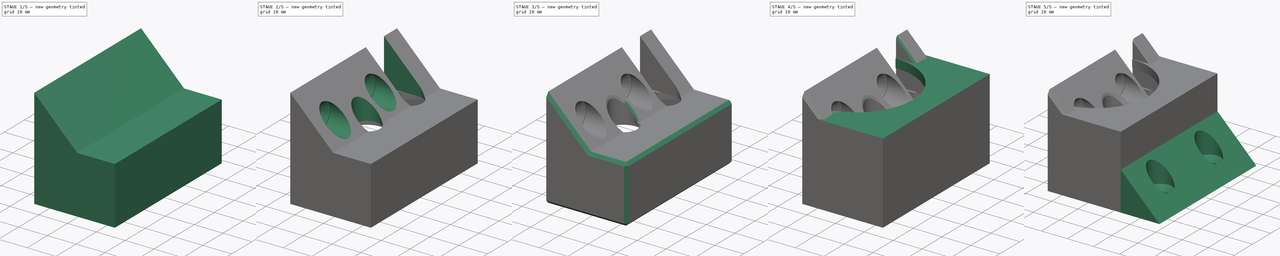
[diagram: build sequence overview — one tinted view per stage of 5, left to right]
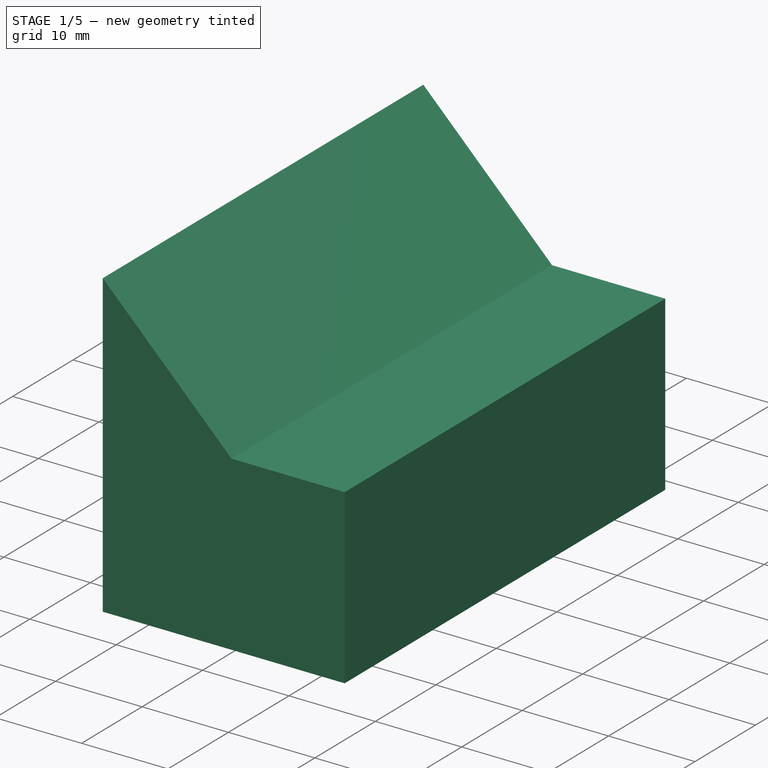
[diagram: stage 1 of 5 — iso view after this stage's code; geometry added in this stage tinted green]
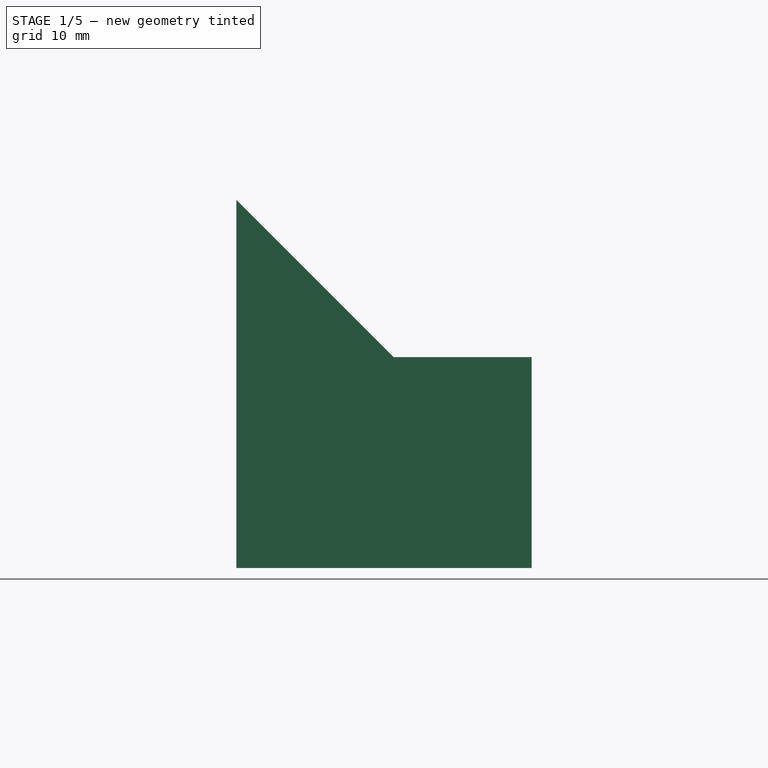
[diagram: stage 1 of 5 — front view after this stage's code; geometry added in this stage tinted green]
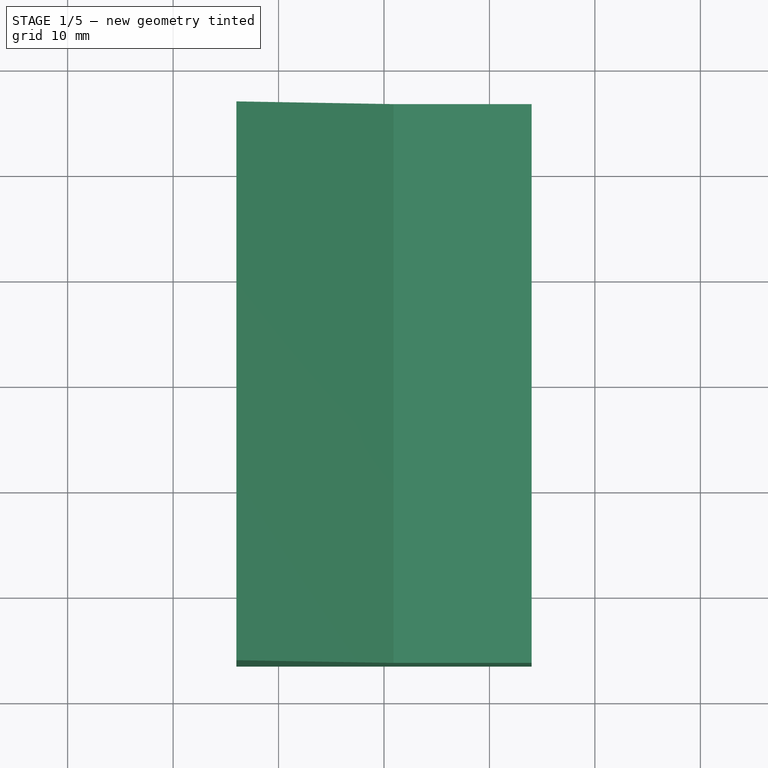
[diagram: stage 1 of 5 — top view after this stage's code; geometry added in this stage tinted green]
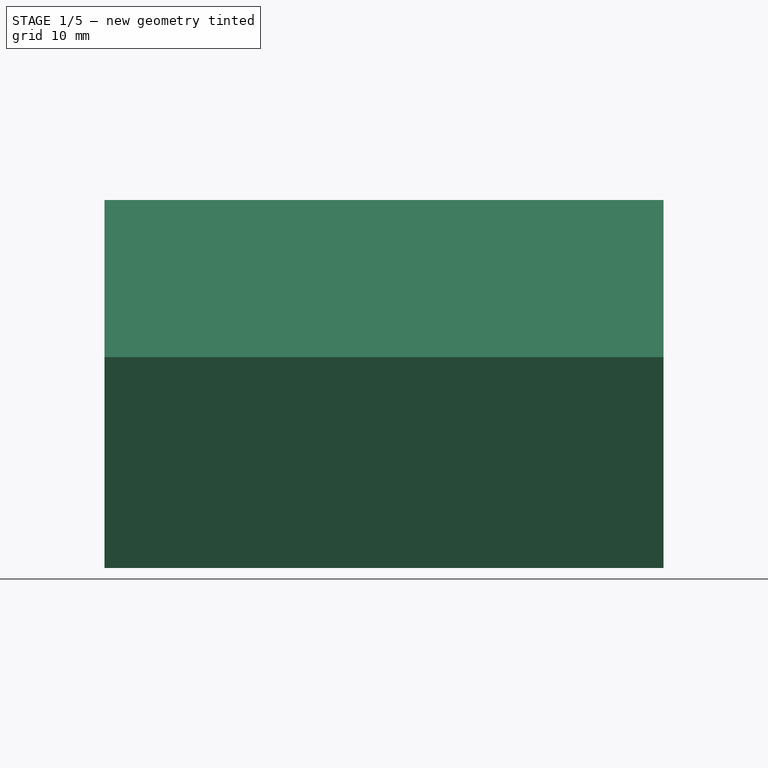
[diagram: stage 1 of 5 — right view after this stage's code; geometry added in this stage tinted green]
FCSTD DOCUMENT  (FreeCAD 0.22R35822 (Git))
Label: 6 port powerboard
License: All rights reserved
LicenseURL: http://en.wikipedia.org/wiki/All_rights_reserved
objects: Sketcher::SketchObject×13, PartDesign::Pocket×9, PartDesign::Chamfer×6, PartDesign::Pad×4, PartDesign::Plane×3, PartDesign::Body×2
note: 56 computed .brp shape members not serialized (recipe doc carries the construction recipe); baked Part::Feature solids carry a one-line shape summary decoded from their .brp

FEATURE [Sketcher::SketchObject] Sketch013
  FullyConstrained = true
  MapMode = 5
  Support = -> [XY_Plane002]
  sketch-geometry (4):
    g0: LineSegment StartX=-14 StartY=26.5 StartZ=0 EndX=-14 EndY=-26.5 EndZ=0
    g1: LineSegment StartX=-14 StartY=-26.5 StartZ=0 EndX=14 EndY=-26.5 EndZ=0
    g2: LineSegment StartX=14 StartY=-26.5 StartZ=0 EndX=14 EndY=26.5 EndZ=0
    g3: LineSegment StartX=14 StartY=26.5 StartZ=0 EndX=-14 EndY=26.5 EndZ=0
  constraints (11):
    c: Coincident(g0,g1)
    c: Coincident(g1,g2)
    c: Coincident(g2,g3)
    c: Coincident(g3,g0)
    c: Vertical(g0)
    c: Vertical(g2)
    c: Horizontal(g1)
    c: Horizontal(g3)
    c: DistanceY(g2,g2) = 53
    c: DistanceX(g1,g1) = 28
    c: Symmetric(g0,g1,g-1)
FEATURE [PartDesign::Pad] Pad005
  Direction = (0,0,1)
  Length = 20
  Length2 = 10
  Profile = -> Sketch013
  ReferenceAxis = -> Sketch013 [N_Axis]
  Type = 0
FEATURE [Sketcher::SketchObject] Sketch014
  ExternalGeometry = -> [Pad005]
  FullyConstrained = true
  MapMode = 5
  Placement = pos=(0,0,0) rot=(1,0,0;3.14159rad)
  Support = -> [Pad005]
  sketch-geometry (4):
    g0: LineSegment StartX=-14 StartY=23.75 StartZ=0 EndX=-14 EndY=-23.75 EndZ=0
    g1: LineSegment StartX=-14 StartY=-23.75 StartZ=0 EndX=11 EndY=-23.75 EndZ=0
    g2: LineSegment StartX=11 StartY=-23.75 StartZ=0 EndX=11 EndY=23.75 EndZ=0
    g3: LineSegment StartX=11 StartY=23.75 StartZ=0 EndX=-14 EndY=23.75 EndZ=0
  constraints (11):
    c: Coincident(g0,g1)
    c: Coincident(g1,g2)
    c: Coincident(g2,g3)
    c: Coincident(g3,g0)
    c: Vertical(g2)
    c: Horizontal(g1)
    c: Horizontal(g3)
    c: PointOnObject(g0,g-3)
    c: DistanceY(g2,g2) = 47.5
    c: DistanceX(g3,g3) = 25
    c: Symmetric(g0,g0,g-1)
FEATURE [PartDesign::Pocket] Pocket008
  BaseFeature = -> Pad005
  Direction = (0,0,1)
  Length = 17
  Length2 = 5
  Profile = -> Sketch014
  ReferenceAxis = -> Sketch014 [N_Axis]
  Type = 0
FEATURE [PartDesign::Pocket] Pocket024
  BaseFeature = -> Pocket008
  Direction = (0,0,-1)
  Length = 6
  Length2 = 5
  Profile = -> Sketch028
  ReferenceAxis = -> Sketch028 [N_Axis]
  Type = 0
FEATURE [PartDesign::Pad] Pad006
  BaseFeature = -> Pocket024
  Direction = (0,-1,2e-16)
  Length = 53
  Length2 = 10
  Profile = -> Sketch016
  ReferenceAxis = -> Sketch016 [N_Axis]
  Reversed = true
  Type = 0
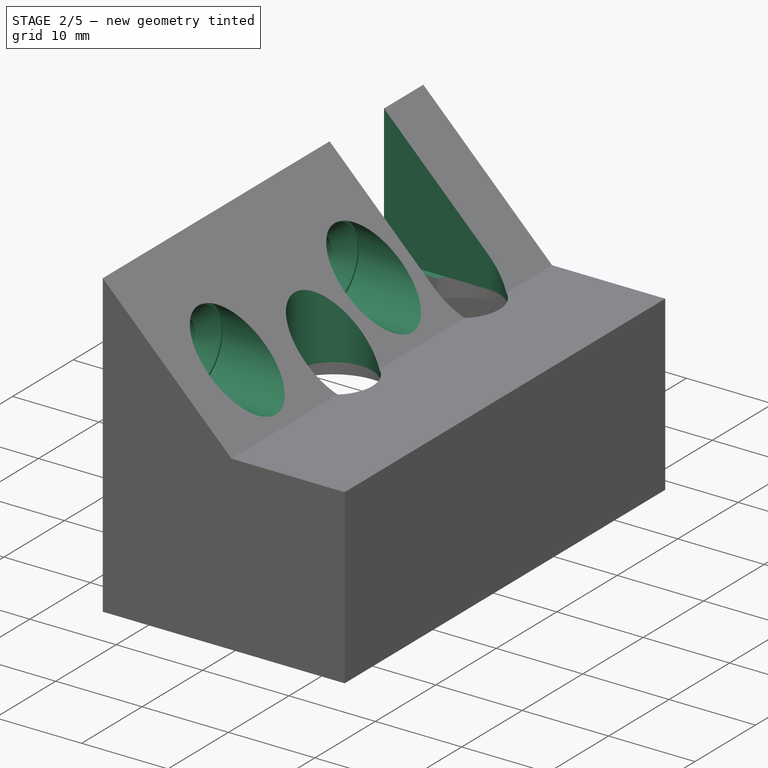
[diagram: stage 2 of 5 — iso view after this stage's code; geometry added in this stage tinted green]
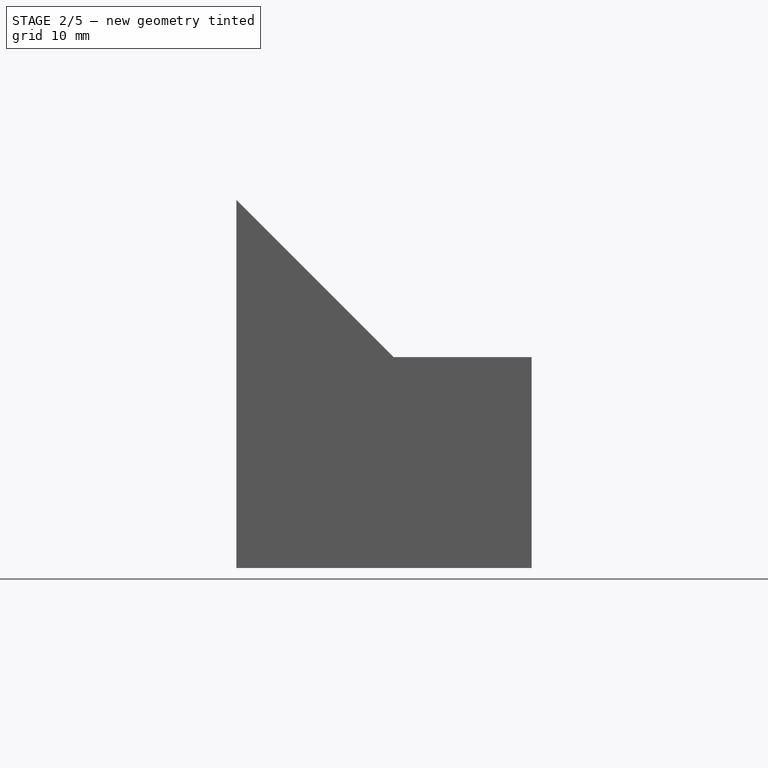
[diagram: stage 2 of 5 — front view after this stage's code; geometry added in this stage tinted green]
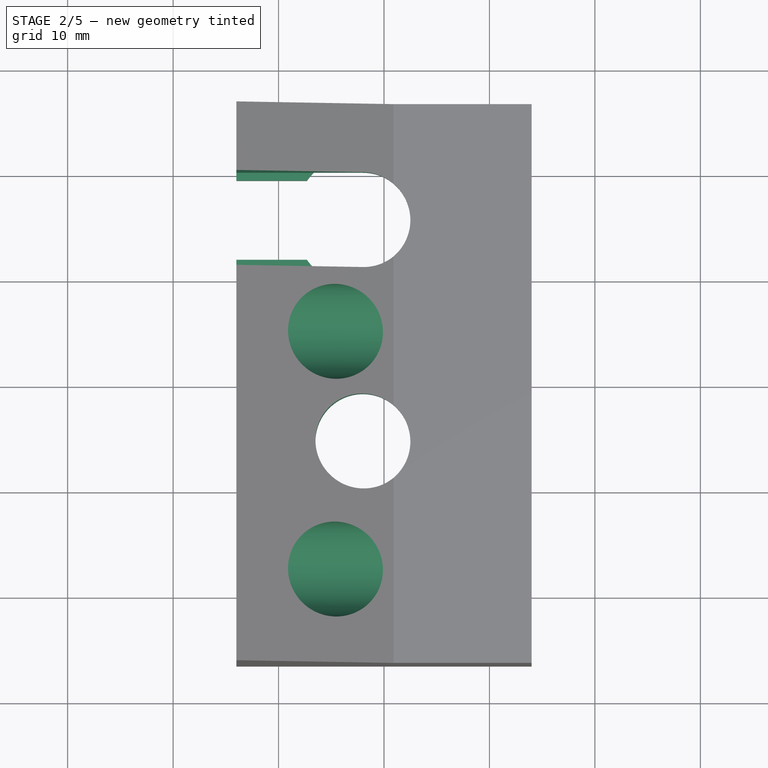
[diagram: stage 2 of 5 — top view after this stage's code; geometry added in this stage tinted green]
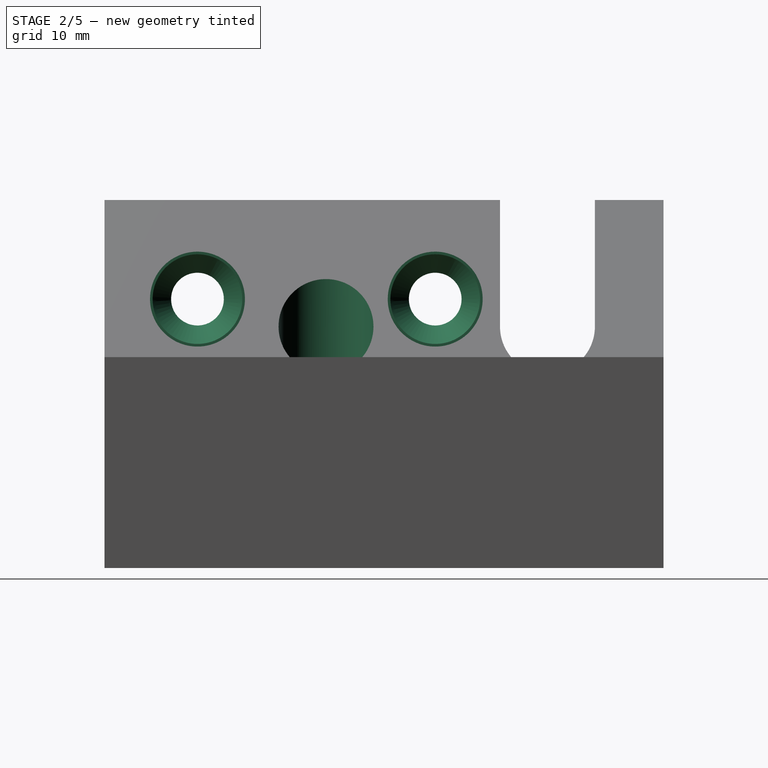
[diagram: stage 2 of 5 — right view after this stage's code; geometry added in this stage tinted green]
FEATURE [PartDesign::Plane] DatumPlane001
  AttachmentOffset = pos=(-35,0,0) rot=(0,-1,0;0.785398rad)
  Length = 60.2956
  MapMode = 5
  Placement = pos=(-14.2987,2.3e-15,35.1987) rot=(0,0,1;0rad)
  ResizeMode = 0
  Support = -> [Pad006]
  Width = 63.2956
FEATURE [Sketcher::SketchObject] Sketch032
  ExternalGeometry = -> [Pad006]
  FullyConstrained = false
  MapMode = 5
  Placement = pos=(-14.2987,2.3e-15,35.1987) rot=(0,0,1;0rad)
  Support = -> [DatumPlane001]
  sketch-geometry (6):
    g0: ArcOfCircle CenterX=12.2987 CenterY=15.5 CenterZ=0 NormalX=0 NormalY=0 NormalZ=1 AngleXU=0 Radius=4.5 StartAngle=4.71238 EndAngle=7.85399
    g1: Circle CenterX=12.2987 CenterY=-5.5 CenterZ=0 NormalX=0 NormalY=0 NormalZ=1 AngleXU=0 Radius=4.5
    g2: LineSegment StartX=0.298737 StartY=20 StartZ=0 EndX=0.298737 EndY=11 EndZ=0
    g3: LineSegment StartX=0.298737 StartY=11 StartZ=0 EndX=12.2987 EndY=11 EndZ=0
    g4: LineSegment StartX=12.2987 StartY=20 StartZ=0 EndX=0.298737 EndY=20 EndZ=0
    g5: GeomPoint X=12.2987 Y=15.5 Z=0
  constraints (14):
    c: Coincident(g0,g-3)
    c: Coincident(g1,g-4)
    c: Equal(g1,g0)
    c: Diameter(g0) = 9
    c: Coincident(g2,g3)
    c: Coincident(g4,g2)
    c: Vertical(g2)
    c: Horizontal(g3)
    c: Horizontal(g4)
    c: PointOnObject(g2,g-5)
    c: Symmetric(g4,g3,g5)
    c: Horizontal(g5,g0)
    c: DistanceY(g2,g2) = 9
    c: Coincident(g0,g3)
FEATURE [PartDesign::Pocket] Pocket025
  BaseFeature = -> Pad006
  Direction = (0,0,-1)
  Length = 16
  Length2 = 5
  Profile = -> Sketch032
  ReferenceAxis = -> Sketch032 [N_Axis]
  Type = 0
FEATURE [PartDesign::Plane] DatumPlane002
  AttachmentOffset = pos=(-14,0,0) rot=(0,1,0;0.785398rad)
  Length = 71.1689
  MapMode = 5
  Placement = pos=(0.550505,2.3e-15,20.3495) rot=(0,1,0;1.5708rad)
  ResizeMode = 0
  Support = -> [Pocket025]
  Width = 64.2689
FEATURE [Sketcher::SketchObject] Sketch033
  ExternalGeometry = -> [Pocket025]
  FullyConstrained = false
  MapMode = 5
  Placement = pos=(0.550505,2.3e-15,20.3495) rot=(0,1,0;1.5708rad)
  Support = -> [DatumPlane002]
  sketch-geometry (2):
    g0: Circle CenterX=-5.15051 CenterY=4.85633 CenterZ=0 NormalX=0 NormalY=0 NormalZ=1 AngleXU=0 Radius=4.5
    g1: Circle CenterX=-5.15051 CenterY=-17.6893 CenterZ=0 NormalX=0 NormalY=0 NormalZ=1 AngleXU=0 Radius=4.5
  constraints (4):
    c: Vertical(g1,g0)
    c: Equal(g0,g1)
    c: Diameter(g0) = 9
    c: DistanceX(g0,g-3) = 5.5
FEATURE [PartDesign::Pocket] Pocket026
  BaseFeature = -> Pocket025
  Direction = (-1,0,-2e-16)
  Length = 10
  Length2 = 5
  Profile = -> Sketch033
  ReferenceAxis = -> Sketch033 [N_Axis]
  Type = 0
FEATURE [Sketcher::SketchObject] Sketch034
  ExternalGeometry = -> [Pocket026]
  FullyConstrained = true
  MapMode = 5
  Placement = pos=(-9.44949,0,-2.2e-15) rot=(0.57735,0.57735,0.57735;2.0944rad)
  Support = -> [Pocket026]
  sketch-geometry (2):
    g0: Circle CenterX=-17.6893 CenterY=25.5 CenterZ=0 NormalX=0 NormalY=0 NormalZ=1 AngleXU=0 Radius=2.5
    g1: Circle CenterX=4.85633 CenterY=25.5 CenterZ=0 NormalX=0 NormalY=0 NormalZ=1 AngleXU=0 Radius=2.5
  constraints (4):
    c: Coincident(g0,g-4)
    c: Coincident(g1,g-3)
    c: Equal(g1,g0)
    c: Diameter(g1) = 5
FEATURE [PartDesign::Pocket] Pocket027
  BaseFeature = -> Pocket026
  Direction = (-1,0,0)
  Length = 5
  Length2 = 5
  Profile = -> Sketch034
  ReferenceAxis = -> Sketch034 [N_Axis]
  Type = 0
FEATURE [PartDesign::Chamfer] Chamfer
  Angle = 45
  Base = -> Pocket027 [Edge96,Edge98]
  BaseFeature = -> Pocket027
  ChamferType = 0
  FlipDirection = false
  Size = 1.75
  Size2 = 1
  SupportTransform = false
  UseAllEdges = false
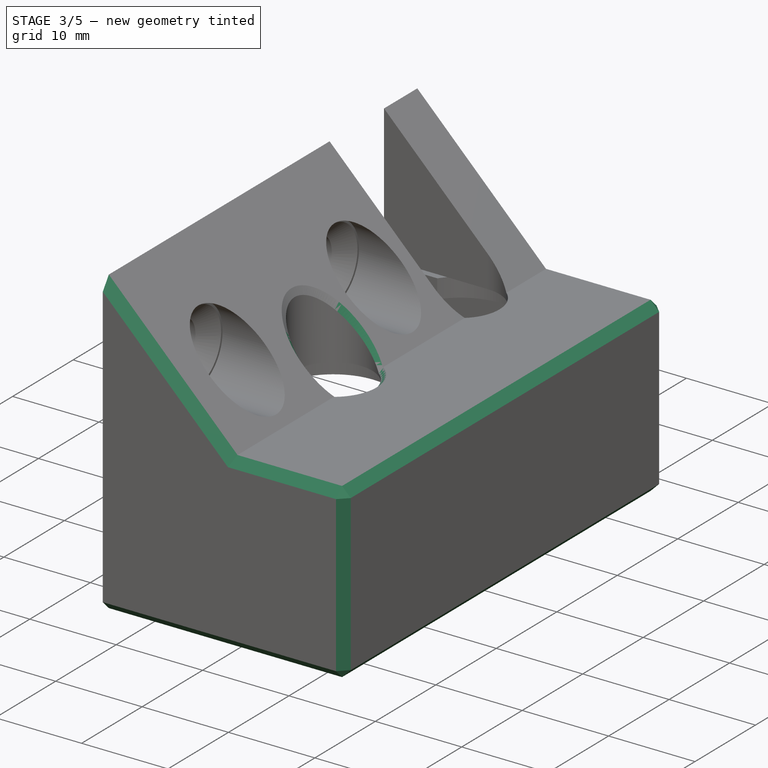
[diagram: stage 3 of 5 — iso view after this stage's code; geometry added in this stage tinted green]
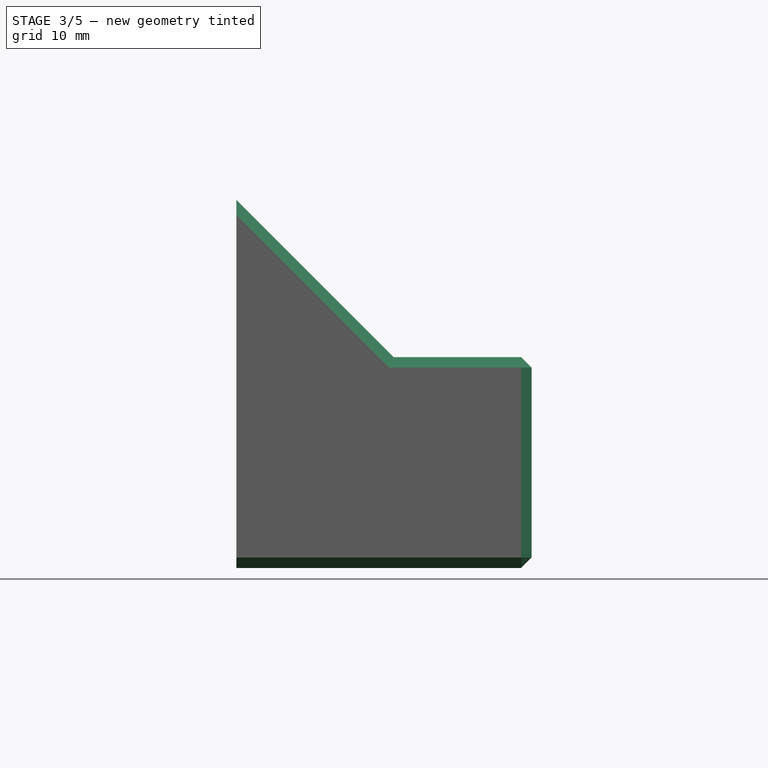
[diagram: stage 3 of 5 — front view after this stage's code; geometry added in this stage tinted green]
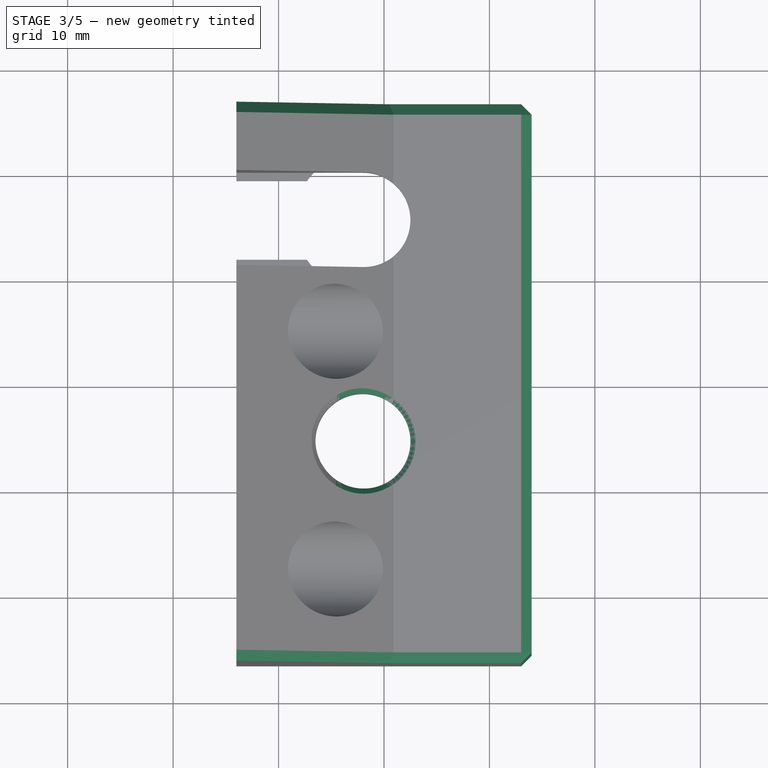
[diagram: stage 3 of 5 — top view after this stage's code; geometry added in this stage tinted green]
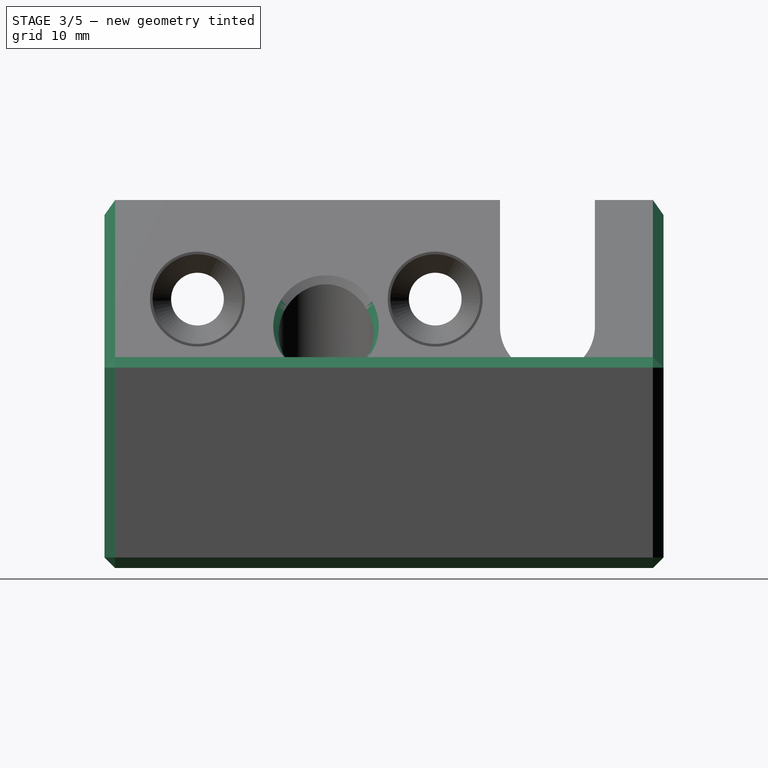
[diagram: stage 3 of 5 — right view after this stage's code; geometry added in this stage tinted green]
FEATURE [PartDesign::Body] Body  label="Right"
  Group = -> [Sketch,Pad,Sketch001,Pocket,Sketch002,Pocket001,Sketch010,DatumPlane,Sketch011,Pad004,Pocket006,Sketch031,Pocket023,Chamfer001]
  Origin = -> Origin
  Placement = pos=(0,0,0) rot=(1,0,0;3.14159rad)
  Tip = -> Chamfer001
FEATURE [PartDesign::Chamfer] Chamfer002
  Angle = 45
  Base = -> Chamfer [Edge34,Edge68,Edge67,Edge66,Edge35,Edge40,Edge72,Edge65]
  BaseFeature = -> Chamfer
  ChamferType = 0
  FlipDirection = false
  Size = 1
  Size2 = 1
  SupportTransform = false
  UseAllEdges = false
FEATURE [PartDesign::Chamfer] Chamfer003
  Angle = 45
  Base = -> Chamfer002 [Edge7,Edge55]
  BaseFeature = -> Chamfer002
  ChamferType = 0
  FlipDirection = false
  Size = 1
  Size2 = 1
  SupportTransform = false
  UseAllEdges = false
FEATURE [PartDesign::Chamfer] Chamfer004
  Angle = 45
  Base = -> Chamfer003 [Edge9,Edge39,Edge38]
  BaseFeature = -> Chamfer003
  ChamferType = 0
  FlipDirection = false
  Size = 0.5
  Size2 = 1
  SupportTransform = false
  UseAllEdges = false
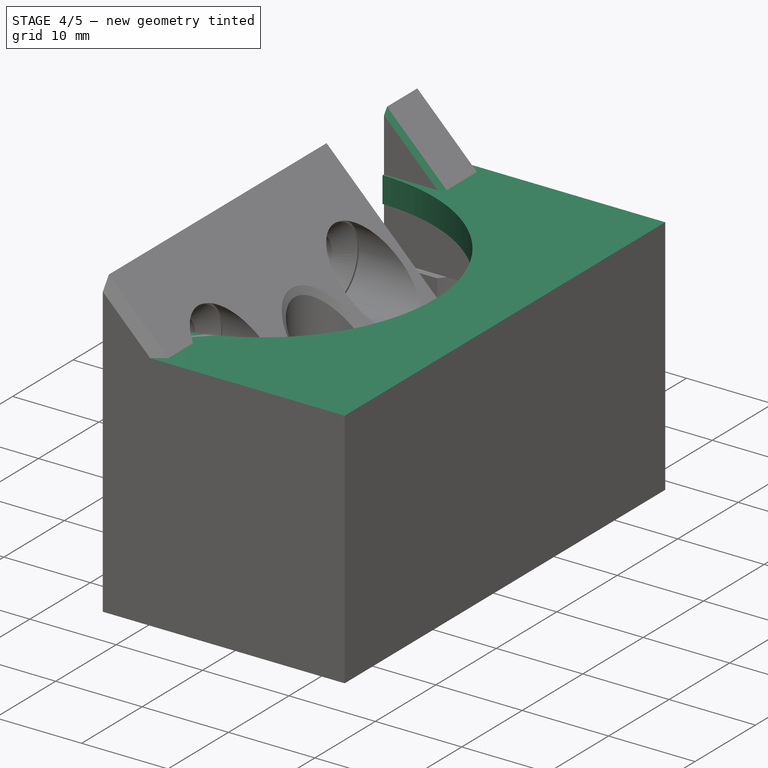
[diagram: stage 4 of 5 — iso view after this stage's code; geometry added in this stage tinted green]
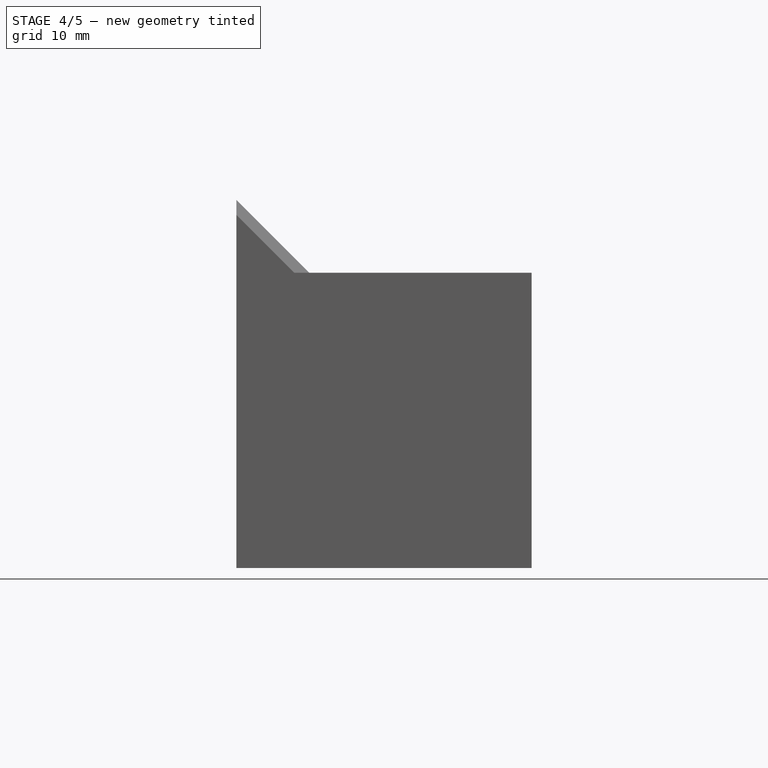
[diagram: stage 4 of 5 — front view after this stage's code; geometry added in this stage tinted green]
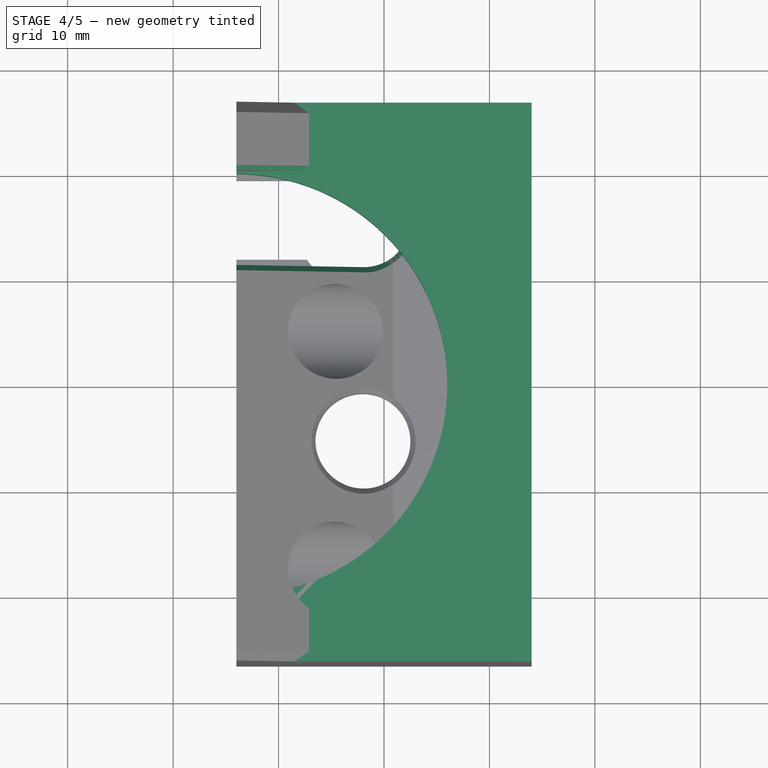
[diagram: stage 4 of 5 — top view after this stage's code; geometry added in this stage tinted green]
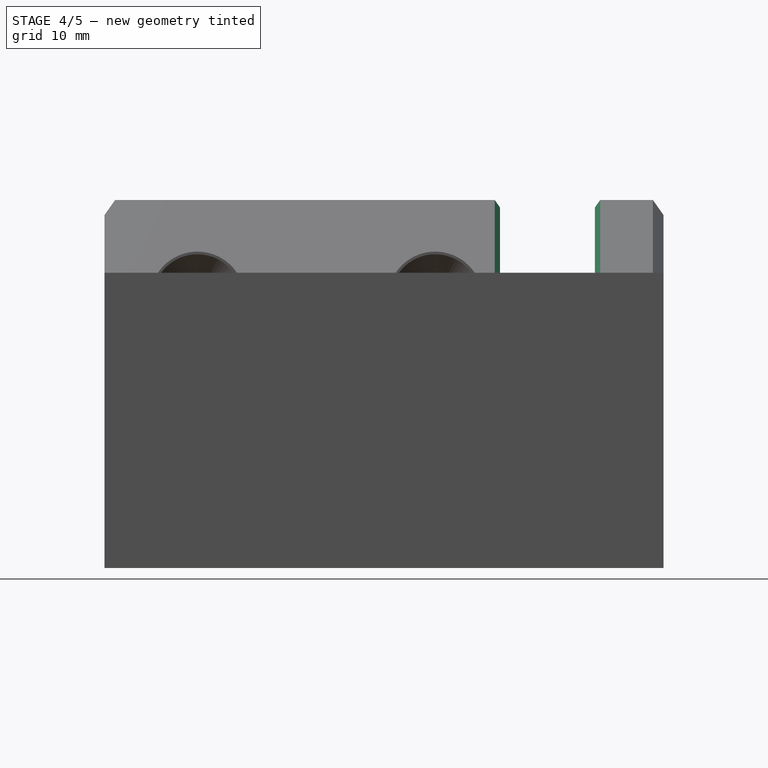
[diagram: stage 4 of 5 — right view after this stage's code; geometry added in this stage tinted green]
FEATURE [Sketcher::SketchObject] Sketch
  FullyConstrained = true
  MapMode = 5
  Support = -> [XY_Plane]
  sketch-geometry (4):
    g0: LineSegment StartX=-14 StartY=26.5 StartZ=0 EndX=-14 EndY=-26.5 EndZ=0
    g1: LineSegment StartX=-14 StartY=-26.5 StartZ=0 EndX=14 EndY=-26.5 EndZ=0
    g2: LineSegment StartX=14 StartY=-26.5 StartZ=0 EndX=14 EndY=26.5 EndZ=0
    g3: LineSegment StartX=14 StartY=26.5 StartZ=0 EndX=-14 EndY=26.5 EndZ=0
  constraints (11):
    c: Coincident(g0,g1)
    c: Coincident(g1,g2)
    c: Coincident(g2,g3)
    c: Coincident(g3,g0)
    c: Vertical(g0)
    c: Vertical(g2)
    c: Horizontal(g1)
    c: Horizontal(g3)
    c: DistanceY(g2,g2) = 53
    c: DistanceX(g1,g1) = 28
    c: Symmetric(g0,g1,g-1)
FEATURE [PartDesign::Pad] Pad
  Direction = (0,0,1)
  Length = 28
  Length2 = 10
  Profile = -> Sketch
  ReferenceAxis = -> Sketch [N_Axis]
  Type = 0
FEATURE [Sketcher::SketchObject] Sketch001
  ExternalGeometry = -> [Pad]
  FullyConstrained = true
  MapMode = 5
  Placement = pos=(0,0,0) rot=(1,0,0;3.14159rad)
  Support = -> [Pad]
  sketch-geometry (4):
    g0: LineSegment StartX=-14 StartY=23.75 StartZ=0 EndX=-14 EndY=-23.75 EndZ=0
    g1: LineSegment StartX=-14 StartY=-23.75 StartZ=0 EndX=11 EndY=-23.75 EndZ=0
    g2: LineSegment StartX=11 StartY=-23.75 StartZ=0 EndX=11 EndY=23.75 EndZ=0
    g3: LineSegment StartX=11 StartY=23.75 StartZ=0 EndX=-14 EndY=23.75 EndZ=0
  constraints (11):
    c: Coincident(g0,g1)
    c: Coincident(g1,g2)
    c: Coincident(g2,g3)
    c: Coincident(g3,g0)
    c: Vertical(g2)
    c: Horizontal(g1)
    c: Horizontal(g3)
    c: PointOnObject(g0,g-3)
    c: DistanceY(g2,g2) = 47.5
    c: DistanceX(g3,g3) = 25
    c: Symmetric(g0,g0,g-1)
FEATURE [PartDesign::Pocket] Pocket
  BaseFeature = -> Pad
  Direction = (0,0,1)
  Length = 25
  Length2 = 5
  Profile = -> Sketch001
  ReferenceAxis = -> Sketch001 [N_Axis]
  Type = 0
FEATURE [Sketcher::SketchObject] Sketch002
  ExternalGeometry = -> [Pocket]
  FullyConstrained = false
  MapMode = 5
  Placement = pos=(0,0,28) rot=(0,0,1;0rad)
  Support = -> [Pocket]
  sketch-geometry (1):
    g0: Circle CenterX=-14 CenterY=-0.249323 CenterZ=0 NormalX=0 NormalY=0 NormalZ=1 AngleXU=0 Radius=20
  constraints (2):
    c: Diameter(g0) = 40
    c: DistanceX(g-3,g0) = 0
FEATURE [PartDesign::Pocket] Pocket001
  BaseFeature = -> Pocket
  Direction = (0,0,-1)
  Length = 5
  Length2 = 5
  Profile = -> Sketch002
  ReferenceAxis = -> Sketch002 [N_Axis]
  Type = 0
FEATURE [PartDesign::Chamfer] Chamfer005
  Angle = 45
  Base = -> Chamfer004 [Edge24,Edge19,Edge3,Edge5,Edge64]
  BaseFeature = -> Chamfer004
  ChamferType = 0
  FlipDirection = false
  Size = 0.5
  Size2 = 1
  SupportTransform = false
  UseAllEdges = false
FEATURE [PartDesign::Body] Body002  label="Left"
  Group = -> [Sketch013,Pad005,Sketch014,Pocket008,Sketch016,Sketch028,Pocket024,Pad006,DatumPlane001,Sketch032,Pocket025,DatumPlane002,Sketch033,Pocket026,Sketch034,Pocket027,Chamfer,Chamfer002,Chamfer003,Chamfer004,Chamfer005]
  Origin = -> Origin002
  Placement = pos=(0,0,0) rot=(0,1,0;1.5708rad)
  Tip = -> Chamfer005
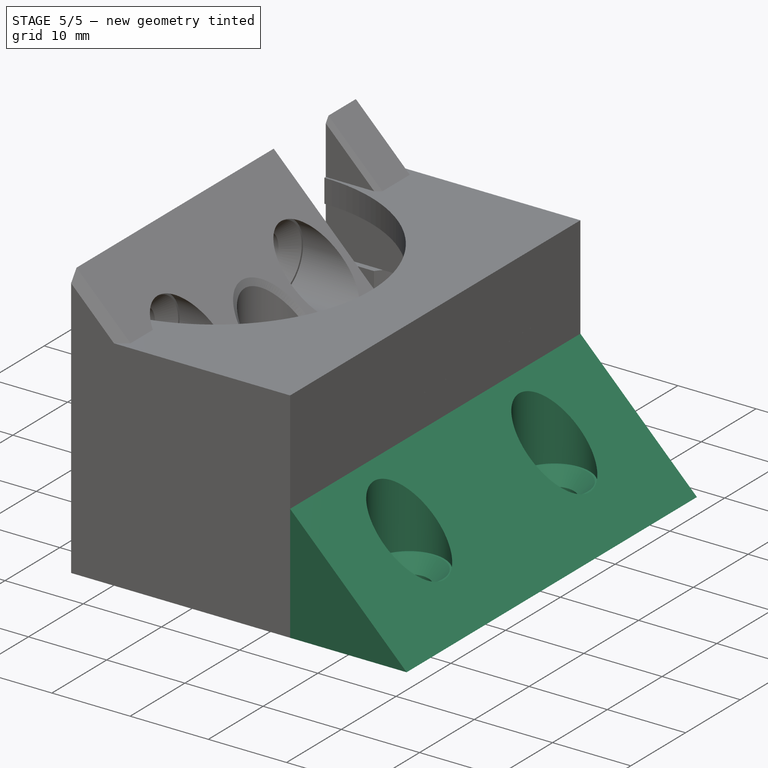
[diagram: stage 5 of 5 — iso view after this stage's code; geometry added in this stage tinted green]
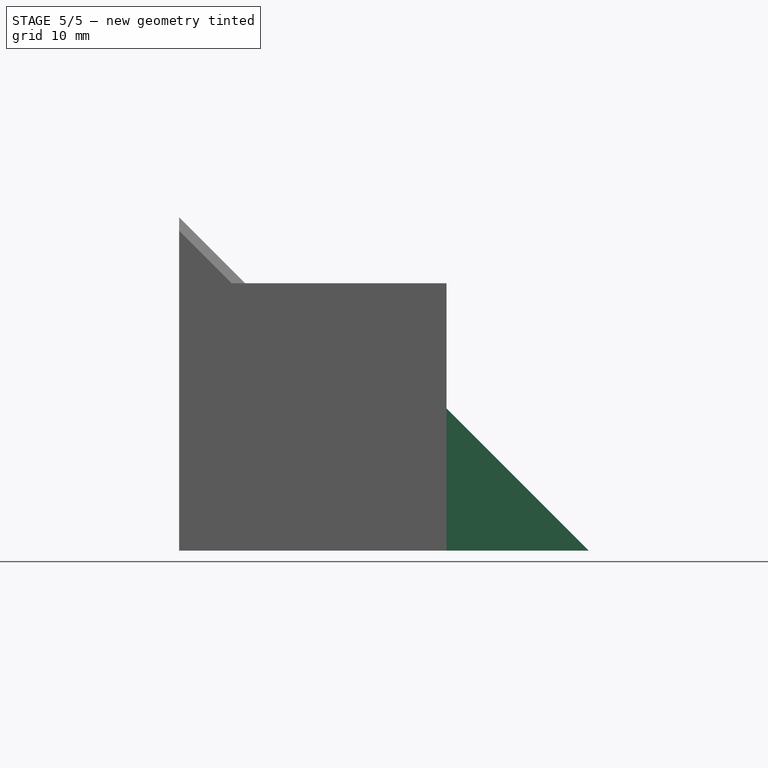
[diagram: stage 5 of 5 — front view after this stage's code; geometry added in this stage tinted green]
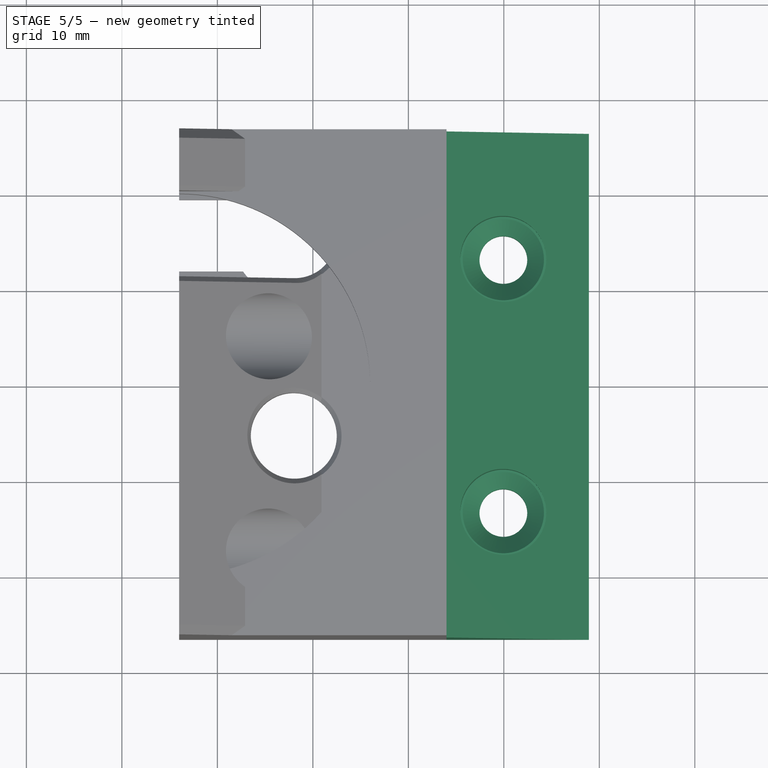
[diagram: stage 5 of 5 — top view after this stage's code; geometry added in this stage tinted green]
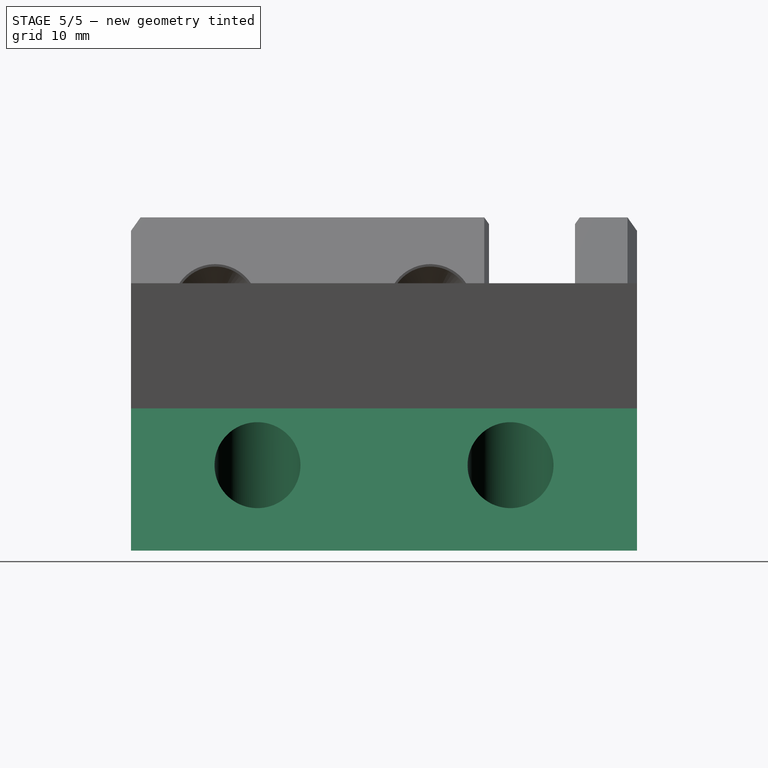
[diagram: stage 5 of 5 — right view after this stage's code; geometry added in this stage tinted green]
FEATURE [Sketcher::SketchObject] Sketch010
  ExternalGeometry = -> [Pocket001]
  FullyConstrained = true
  MapMode = 5
  Placement = pos=(0,-26.5,0) rot=(1,0,0;1.5708rad)
  Support = -> [Pocket001]
  sketch-geometry (4):
    g0: LineSegment StartX=13.9 StartY=-1.8e-15 StartZ=0 EndX=13.9 EndY=15 EndZ=0
    g1: LineSegment StartX=13.9 StartY=-1.8e-15 StartZ=0 EndX=28.9 EndY=-1.8e-15 EndZ=0
    g2: LineSegment StartX=13.9 StartY=15 StartZ=0 EndX=28.9 EndY=-1.8e-15 EndZ=0
    g3: LineSegment StartX=13.9 StartY=28 StartZ=0 EndX=13.9 EndY=0 EndZ=0
  constraints (13):
    c: Coincident(g1,g0)
    c: PointOnObject(g1,g-1)
    c: Coincident(g2,g0)
    c: Coincident(g2,g1)
    c: Angle(g2,g1) = 0.785398
    c: Angle(g0,g2) = 0.785398
    c: Horizontal(g1)
    c: DistanceX(g1,g1) = 15
    c: PointOnObject(g3,g-3)
    c: PointOnObject(g3,g-1)
    c: Vertical(g3)
    c: DistanceX(g3,g-4) = 0.1
    c: DistanceX(g3,g0) = 0
FEATURE [PartDesign::Plane] DatumPlane
  AttachmentOffset = pos=(0,0,0) rot=(0,-1,0;0.785398rad)
  Length = 64.5896
  MapMode = 5
  Placement = pos=(14.45,3e-15,14.45) rot=(0,0,1;0rad)
  ResizeMode = 0
  Width = 63.6896
FEATURE [PartDesign::Pad] Pad004
  BaseFeature = -> Pocket001
  Direction = (0,-1,2e-16)
  Length = 53
  Length2 = 10
  Profile = -> Sketch010
  ReferenceAxis = -> Sketch010 [N_Axis]
  Reversed = true
  Type = 0
FEATURE [Sketcher::SketchObject] Sketch011
  FullyConstrained = true
  MapMode = 5
  Placement = pos=(14.45,3e-15,14.45) rot=(0,0,1;0rad)
  Support = -> [DatumPlane]
  sketch-geometry (2):
    g0: Circle CenterX=5.5 CenterY=13.25 CenterZ=0 NormalX=0 NormalY=0 NormalZ=1 AngleXU=0 Radius=4.5
    g1: Circle CenterX=5.5 CenterY=-13.25 CenterZ=0 NormalX=0 NormalY=0 NormalZ=1 AngleXU=0 Radius=4.5
  constraints (6):
    c: Diameter(g0) = 9
    c: Equal(g1,g0)
    c: DistanceY(g-1,g0) = 13.25
    c: DistanceY(g1,g-1) = 13.25
    c: DistanceX(g-1,g0) = 5.5
    c: Vertical(g1,g0)
FEATURE [PartDesign::Pocket] Pocket006
  BaseFeature = -> Pad004
  Direction = (6e-15,0,-1)
  Length = 10
  Length2 = 5
  Profile = -> Sketch011
  ReferenceAxis = -> Sketch011 [N_Axis]
  Type = 0
FEATURE [Sketcher::SketchObject] Sketch016
  ExternalGeometry = -> [Pocket008]
  FullyConstrained = false
  MapMode = 5
  Placement = pos=(0,-26.5,0) rot=(1,0,0;1.5708rad)
  sketch-geometry (4):
    g0: LineSegment StartX=14 StartY=19.9 StartZ=0 EndX=-14 EndY=19.9 EndZ=0
    g1: LineSegment StartX=-14 StartY=19.9 StartZ=0 EndX=1 EndY=19.9 EndZ=0
    g2: LineSegment StartX=1 StartY=19.9 StartZ=0 EndX=-14 EndY=34.9 EndZ=0
    g3: LineSegment StartX=-14 StartY=34.9 StartZ=0 EndX=-14 EndY=19.9 EndZ=0
  constraints (11):
    c: Horizontal(g0)
    c: Coincident(g0,g1)
    c: PointOnObject(g1,g0)
    c: Coincident(g1,g2)
    c: Coincident(g2,g3)
    c: Coincident(g3,g1)
    c: Vertical(g3)
    c: Angle(g3,g2) = 0.785398
    c: DistanceY(g3,g3) = 15
    c: PointOnObject(g0,g-4)
    c: DistanceY(g0,g-4) = 0.1
FEATURE [Sketcher::SketchObject] Sketch028
  ExternalGeometry = -> [Pocket008]
  FullyConstrained = false
  MapMode = 5
  Placement = pos=(-14.2987,2.4e-15,19.2) rot=(0,0,1;0rad)
  sketch-geometry (6):
    g0: ArcOfCircle CenterX=12.2987 CenterY=15.5 CenterZ=0 NormalX=0 NormalY=0 NormalZ=1 AngleXU=0 Radius=6.5 StartAngle=3.75655 EndAngle=8.80982
    g1: Circle CenterX=12.2987 CenterY=-5.5 CenterZ=0 NormalX=0 NormalY=0 NormalZ=1 AngleXU=0 Radius=6.5
    g2: LineSegment StartX=0.298737 StartY=19.25 StartZ=0 EndX=0.298737 EndY=11.75 EndZ=0
    g3: LineSegment StartX=0.298737 StartY=11.75 StartZ=0 EndX=6.98955 EndY=11.75 EndZ=0
    g4: LineSegment StartX=6.98955 StartY=19.25 StartZ=0 EndX=0.298737 EndY=19.25 EndZ=0
    g5: GeomPoint X=6.98955 Y=15.5 Z=0
  constraints (16):
    c: Equal(g1,g0)
    c: Diameter(g0) = 13
    c: Vertical(g1,g0)
    c: Distance(g0,g1) = 21
    c: Coincident(g2,g3)
    c: Coincident(g4,g2)
    c: Vertical(g2)
    c: Horizontal(g3)
    c: Horizontal(g4)
    c: DistanceY(g2,g2) = 7.5
    c: Symmetric(g4,g3,g5)
    c: Horizontal(g5,g0)
    c: Coincident(g0,g3)
    c: Coincident(g4,g0)
    c: DistanceX(g2,g0) = 12
    c: PointOnObject(g2,g-3)
FEATURE [Sketcher::SketchObject] Sketch031
  ExternalGeometry = -> [Sketch011]
  FullyConstrained = true
  MapMode = 5
  Placement = pos=(-2.69e-14,0,4.45) rot=(0,0,1;0rad)
  Support = -> [Pocket006]
  sketch-geometry (2):
    g0: Circle CenterX=19.95 CenterY=13.25 CenterZ=0 NormalX=0 NormalY=0 NormalZ=1 AngleXU=0 Radius=2.5
    g1: Circle CenterX=19.95 CenterY=-13.25 CenterZ=0 NormalX=0 NormalY=0 NormalZ=1 AngleXU=0 Radius=2.5
  constraints (4):
    c: Coincident(g0,g-3)
    c: Coincident(g1,g-4)
    c: Equal(g1,g0)
    c: Diameter(g0) = 5
FEATURE [PartDesign::Pocket] Pocket023
  BaseFeature = -> Pocket006
  Direction = (6.1e-15,0,-1)
  Length = 5
  Length2 = 5
  Profile = -> Sketch031
  ReferenceAxis = -> Sketch031 [N_Axis]
  Type = 1
FEATURE [PartDesign::Chamfer] Chamfer001
  Angle = 45
  Base = -> Pocket023 [Edge55,Edge53]
  BaseFeature = -> Pocket023
  ChamferType = 0
  FlipDirection = false
  Size = 1.75
  Size2 = 1
  SupportTransform = false
  UseAllEdges = false
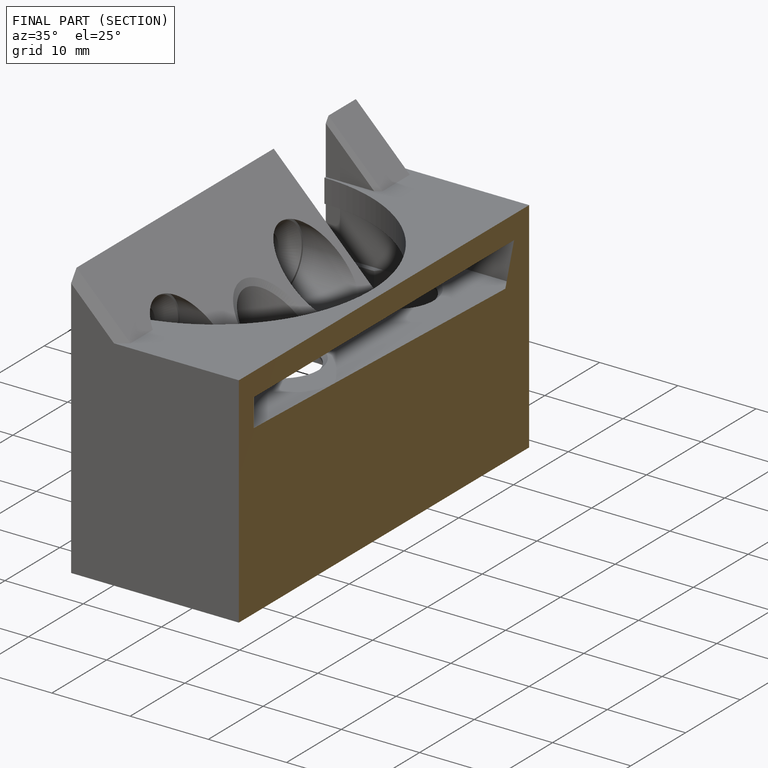
[diagram: finished part — half-section view (interior)]
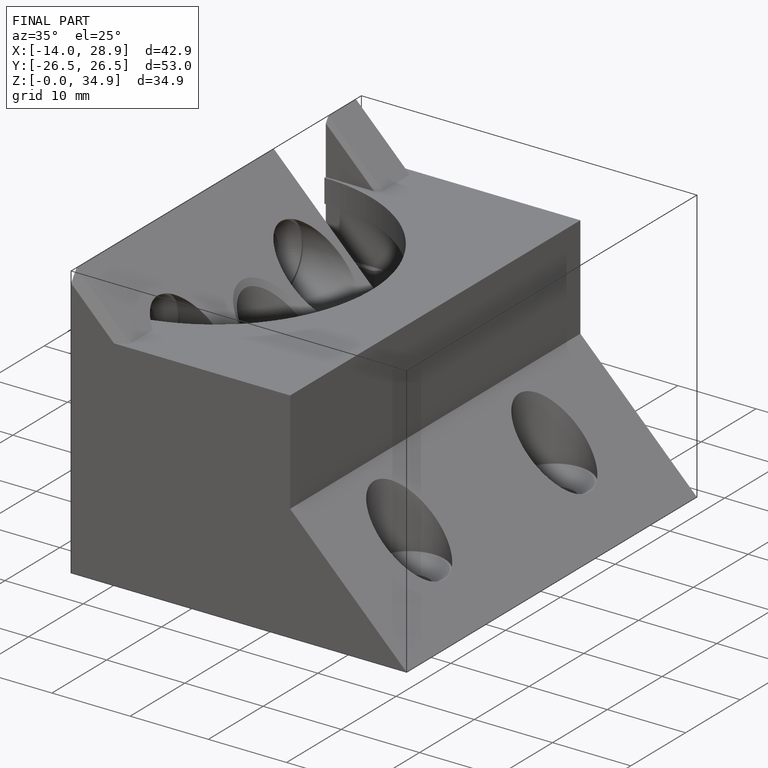
[diagram: finished part — iso view with bounding-box wireframe]
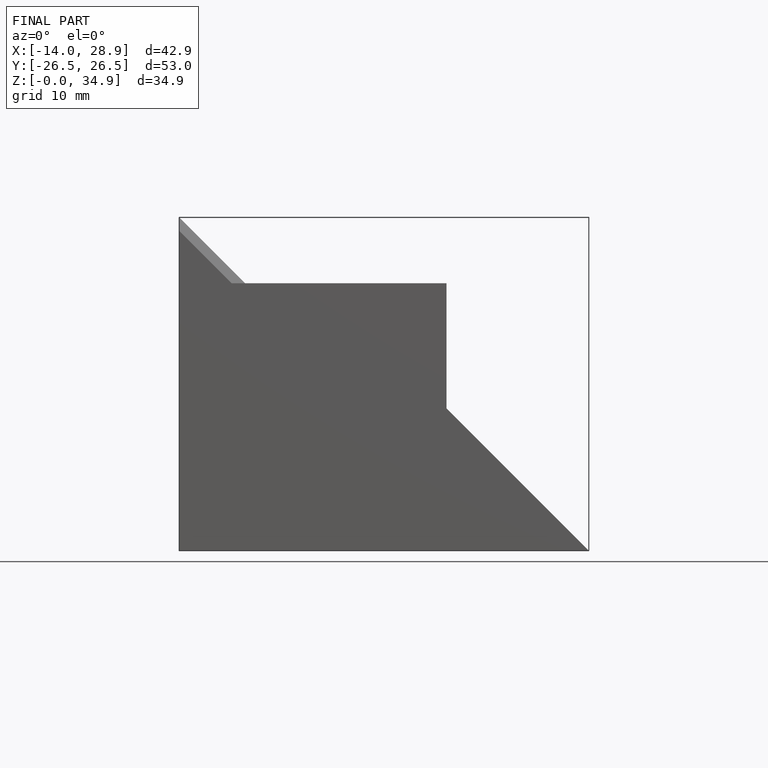
[diagram: finished part — front view with bounding-box wireframe]
